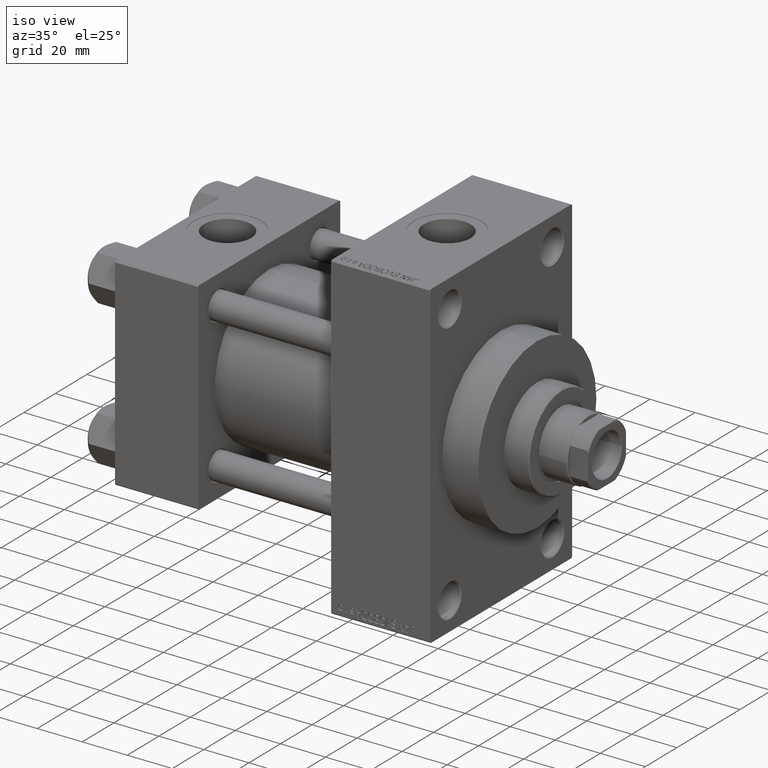
[diagram: clean part render]
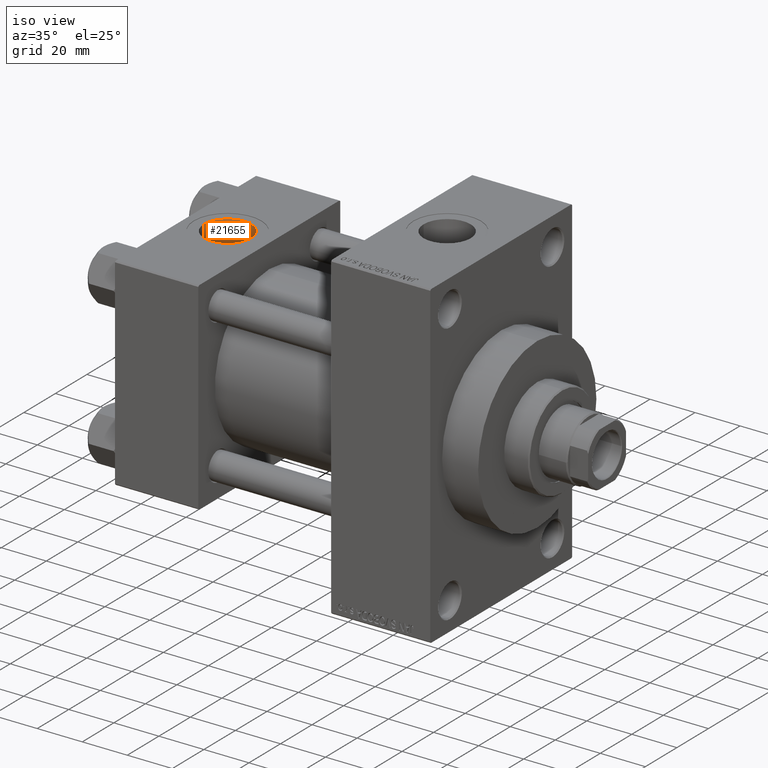
[diagram: same view with one face highlighted and labeled with its STEP entity id]
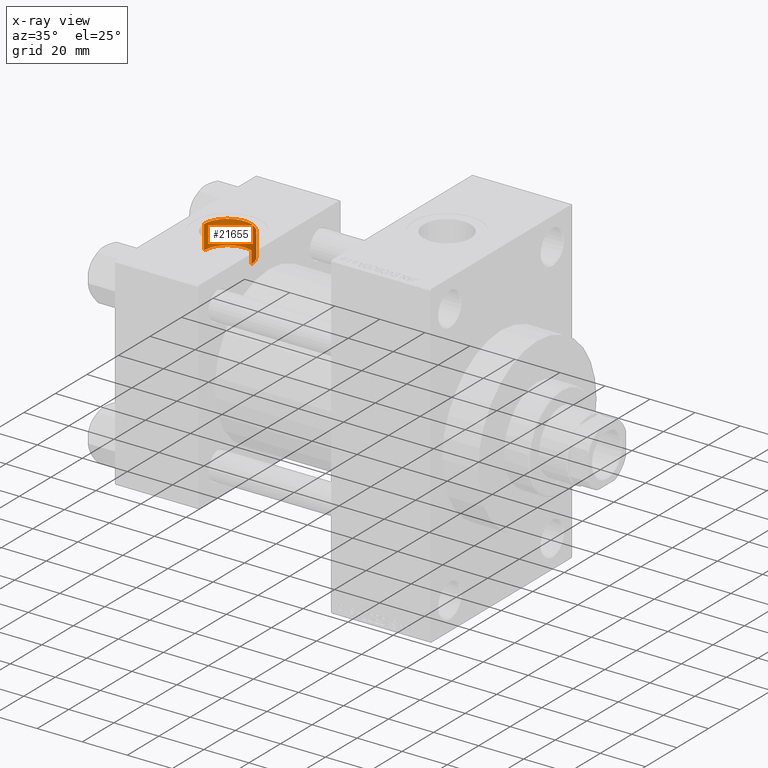
[diagram: x-ray of the same camera — body ghosted, the highlighted face saturated]
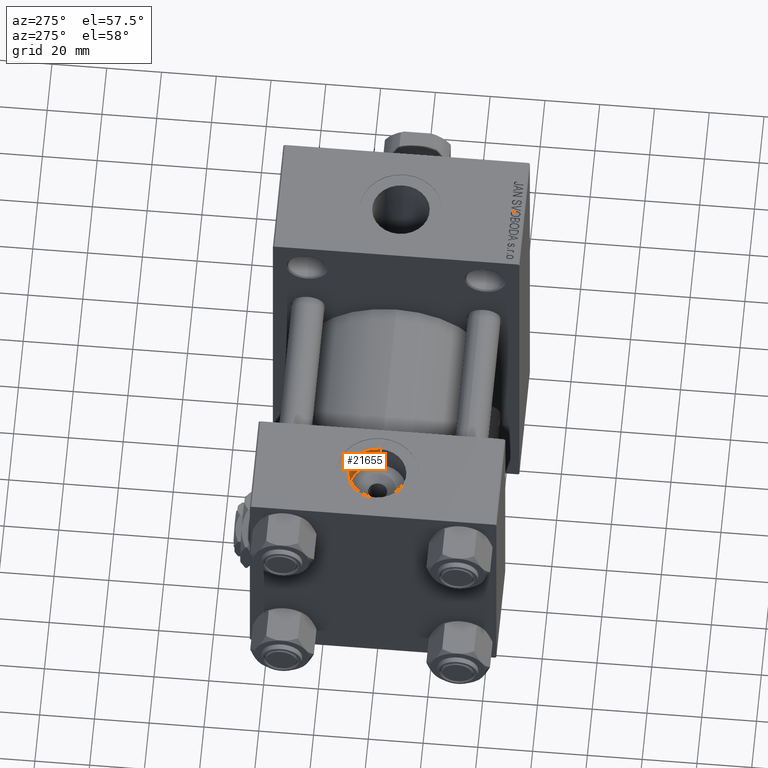
[diagram: same view with one face highlighted and labeled with its STEP entity id]
A machine part, iso view. The second image highlights one B-rep face of the part: STEP entity #21655.
The next image is the same camera in x-ray: the body ghosted, the highlighted face saturated — about 0% of this face is hidden behind the body in this view.
A second angle (auxiliary view) of the same face is appended — the face is thin or edge-on in the first view.
In plain terms, the highlighted cylindrical surface (edge-blend (fillet) strip) has radius 10.48 mm, axis along (0, 0, 1).
Its self-contained STEP definition (entity closure, byte-faithful):
#664 = VERTEX_POINT ( 'NONE', #41015 ) ;
#1037 = EDGE_CURVE ( 'NONE', #664, #33362, #41198, .T. ) ;
#1633 = CARTESIAN_POINT ( 'NONE',  ( 8.019999999999999574, -7.390187534377611561E-15, 34.20000000000000995 ) ) ;
#1921 = VECTOR ( 'NONE', #3564, 1000.000000000000000 ) ;
#2951 = CARTESIAN_POINT ( 'NONE',  ( 28.98000000000000043, -8.673617379884038628E-15, 44.80000000000000426 ) ) ;
#3564 = DIRECTION ( 'NONE',  ( -0.000000000000000000, -0.000000000000000000, 1.000000000000000000 ) ) ;
#3704 = DIRECTION ( 'NONE',  ( -0.000000000000000000, -0.000000000000000000, 1.000000000000000000 ) ) ;
#3706 = DIRECTION ( 'NONE',  ( 1.000000000000000000, 0.000000000000000000, 0.000000000000000000 ) ) ;
#4213 = CARTESIAN_POINT ( 'NONE',  ( 18.50000000000000000, -8.673617379884038628E-15, 44.80000000000000426 ) ) ;
#5572 = ORIENTED_EDGE ( 'NONE', *, *, #41033, .F. ) ;
#7884 = AXIS2_PLACEMENT_3D ( 'NONE', #4213, #41835, #3706 ) ;
#11326 = AXIS2_PLACEMENT_3D ( 'NONE', #35620, #32407, #17064 ) ;
#11999 = CARTESIAN_POINT ( 'NONE',  ( 28.98000000000000043, -8.673617379884038628E-15, 34.20000000000000995 ) ) ;
#13394 = CIRCLE ( 'NONE', #7884, 10.48000000000000043 ) ;
#13614 = AXIS2_PLACEMENT_3D ( 'NONE', #47787, #29700, #36392 ) ;
#15674 = CARTESIAN_POINT ( 'NONE',  ( 8.019999999999999574, -7.390187534377611561E-15, 44.80000000000000426 ) ) ;
#17064 = DIRECTION ( 'NONE',  ( 1.000000000000000000, 0.000000000000000000, 0.000000000000000000 ) ) ;
#20068 = VECTOR ( 'NONE', #3704, 1000.000000000000000 ) ;
#21614 = CIRCLE ( 'NONE', #11326, 10.48000000000000043 ) ;
#21655 = ADVANCED_FACE ( 'NONE', ( #29212 ), #44295, .F. ) ;
#25517 = LINE ( 'NONE', #48278, #20068 ) ;
#29212 = FACE_OUTER_BOUND ( 'NONE', #47281, .T. ) ;
#29700 = DIRECTION ( 'NONE',  ( -0.000000000000000000, -0.000000000000000000, 1.000000000000000000 ) ) ;
#30557 = EDGE_CURVE ( 'NONE', #33362, #41867, #13394, .T. ) ;
#32407 = DIRECTION ( 'NONE',  ( 0.000000000000000000, 0.000000000000000000, 1.000000000000000000 ) ) ;
#33362 = VERTEX_POINT ( 'NONE', #2951 ) ;
#35620 = CARTESIAN_POINT ( 'NONE',  ( 18.50000000000000000, -8.673617379884038628E-15, 34.20000000000000995 ) ) ;
#36392 = DIRECTION ( 'NONE',  ( 1.000000000000000000, 0.000000000000000000, 0.000000000000000000 ) ) ;
#40443 = ORIENTED_EDGE ( 'NONE', *, *, #1037, .T. ) ;
#41015 = CARTESIAN_POINT ( 'NONE',  ( 28.98000000000000043, -8.673617379884038628E-15, 34.20000000000000995 ) ) ;
#41033 = EDGE_CURVE ( 'NONE', #45583, #41867, #25517, .T. ) ;
#41198 = LINE ( 'NONE', #11999, #1921 ) ;
#41835 = DIRECTION ( 'NONE',  ( 0.000000000000000000, 0.000000000000000000, 1.000000000000000000 ) ) ;
#41867 = VERTEX_POINT ( 'NONE', #15674 ) ;
#43073 = EDGE_CURVE ( 'NONE', #664, #45583, #21614, .T. ) ;
#43956 = ORIENTED_EDGE ( 'NONE', *, *, #30557, .T. ) ;
#44295 = CYLINDRICAL_SURFACE ( 'NONE', #13614, 10.48000000000000043 ) ;
#44518 = ORIENTED_EDGE ( 'NONE', *, *, #43073, .F. ) ;
#45583 = VERTEX_POINT ( 'NONE', #1633 ) ;
#47281 = EDGE_LOOP ( 'NONE', ( #5572, #44518, #40443, #43956 ) ) ;
#47787 = CARTESIAN_POINT ( 'NONE',  ( 18.50000000000000000, -8.673617379884038628E-15, 34.20000000000000995 ) ) ;
#48278 = CARTESIAN_POINT ( 'NONE',  ( 8.019999999999999574, -7.390187534377611561E-15, 34.20000000000000995 ) ) ;